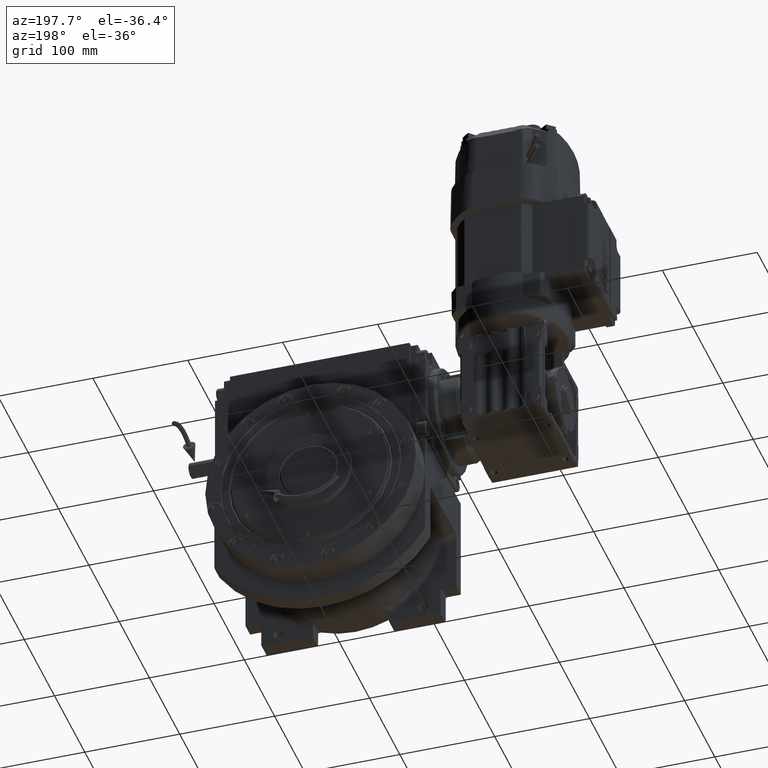
[diagram: clean part render]
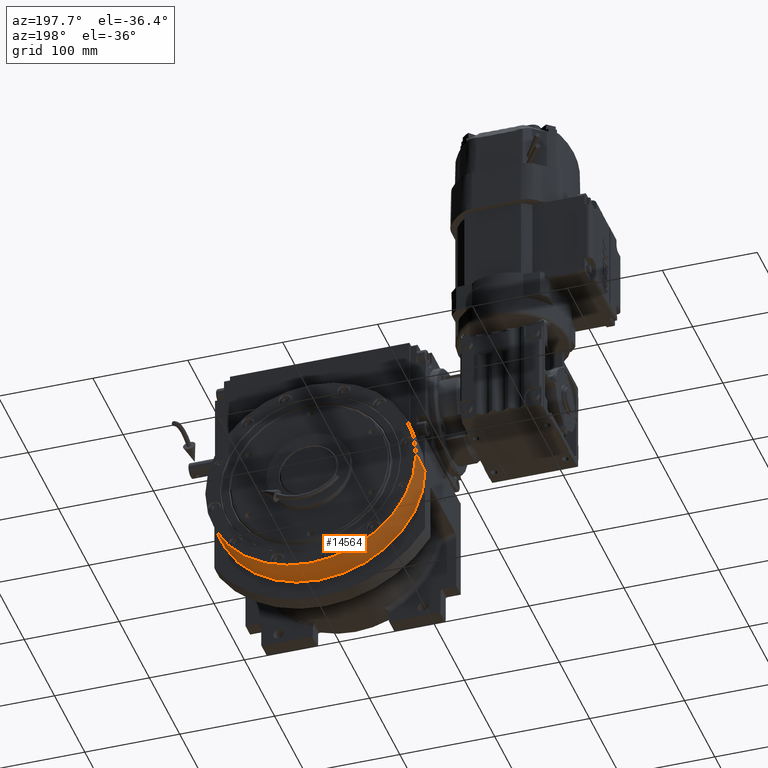
[diagram: same view with one face highlighted and labeled with its STEP entity id]
A machine part, auxiliary view. The second image highlights one B-rep face of the part: STEP entity #14564.
In plain terms, the highlighted cylindrical surface (partial cylindrical patch) has radius 111 mm, axis along (0, -1, 0).
Its self-contained STEP definition (entity closure, byte-faithful):
#58 = DIRECTION ( 'NONE',  ( 0.000000000000000000, 0.000000000000000000, 1.000000000000000000 ) ) ;
#304 = FACE_OUTER_BOUND ( 'NONE', #77215, .T. ) ;
#902 = CIRCLE ( 'NONE', #16998, 111.0000000000000000 ) ;
#2777 = EDGE_CURVE ( 'NONE', #90455, #95475, #38497, .T. ) ;
#10929 = EDGE_CURVE ( 'NONE', #92401, #95475, #902, .T. ) ;
#14564 = ADVANCED_FACE ( 'NONE', ( #304 ), #31107, .T. ) ;
#15260 = DIRECTION ( 'NONE',  ( 0.000000000000000000, 0.000000000000000000, 1.000000000000000000 ) ) ;
#15363 = EDGE_CURVE ( 'NONE', #50248, #92401, #61686, .T. ) ;
#16688 = DIRECTION ( 'NONE',  ( 1.000000000000000000, 0.000000000000000000, 0.000000000000000000 ) ) ;
#16998 = AXIS2_PLACEMENT_3D ( 'NONE', #93450, #85392, #16688 ) ;
#29109 = CARTESIAN_POINT ( 'NONE',  ( 0.000000000000000000, 0.000000000000000000, 0.000000000000000000 ) ) ;
#31107 = CYLINDRICAL_SURFACE ( 'NONE', #44412, 111.0000000000000000 ) ;
#33174 = CARTESIAN_POINT ( 'NONE',  ( 111.0000000000000000, 0.000000000000000000, 30.00000000000000000 ) ) ;
#35781 = EDGE_CURVE ( 'NONE', #50248, #90455, #59905, .T. ) ;
#38497 = LINE ( 'NONE', #90563, #88328 ) ;
#44412 = AXIS2_PLACEMENT_3D ( 'NONE', #29109, #44750, #99310 ) ;
#44750 = DIRECTION ( 'NONE',  ( 0.000000000000000000, 0.000000000000000000, -1.000000000000000000 ) ) ;
#50248 = VERTEX_POINT ( 'NONE', #77823 ) ;
#53128 = ORIENTED_EDGE ( 'NONE', *, *, #15363, .F. ) ;
#57625 = CARTESIAN_POINT ( 'NONE',  ( -111.0000000000000000, 4.531193156845210737E-15, 0.000000000000000000 ) ) ;
#59320 = ORIENTED_EDGE ( 'NONE', *, *, #10929, .F. ) ;
#59566 = ORIENTED_EDGE ( 'NONE', *, *, #2777, .T. ) ;
#59905 = CIRCLE ( 'NONE', #92181, 111.0000000000000000 ) ;
#60440 = VECTOR ( 'NONE', #58, 1000.000000000000000 ) ;
#61686 = LINE ( 'NONE', #78841, #60440 ) ;
#63477 = DIRECTION ( 'NONE',  ( 1.000000000000000000, 0.000000000000000000, 0.000000000000000000 ) ) ;
#64171 = ORIENTED_EDGE ( 'NONE', *, *, #35781, .T. ) ;
#77215 = EDGE_LOOP ( 'NONE', ( #59566, #59320, #53128, #64171 ) ) ;
#77823 = CARTESIAN_POINT ( 'NONE',  ( 111.0000000000000000, 0.000000000000000000, 0.000000000000000000 ) ) ;
#78841 = CARTESIAN_POINT ( 'NONE',  ( 111.0000000000000000, 0.000000000000000000, 0.000000000000000000 ) ) ;
#85392 = DIRECTION ( 'NONE',  ( 0.000000000000000000, 0.000000000000000000, 1.000000000000000000 ) ) ;
#86518 = CARTESIAN_POINT ( 'NONE',  ( -111.0000000000000000, 4.531193156845210737E-15, 30.00000000000000000 ) ) ;
#88328 = VECTOR ( 'NONE', #15260, 1000.000000000000000 ) ;
#90455 = VERTEX_POINT ( 'NONE', #57625 ) ;
#90563 = CARTESIAN_POINT ( 'NONE',  ( -111.0000000000000000, 1.359357947053561722E-14, 0.000000000000000000 ) ) ;
#92181 = AXIS2_PLACEMENT_3D ( 'NONE', #94262, #95271, #63477 ) ;
#92401 = VERTEX_POINT ( 'NONE', #33174 ) ;
#93450 = CARTESIAN_POINT ( 'NONE',  ( 0.000000000000000000, 0.000000000000000000, 30.00000000000000000 ) ) ;
#94262 = CARTESIAN_POINT ( 'NONE',  ( 0.000000000000000000, 0.000000000000000000, 0.000000000000000000 ) ) ;
#95271 = DIRECTION ( 'NONE',  ( 0.000000000000000000, 0.000000000000000000, 1.000000000000000000 ) ) ;
#95475 = VERTEX_POINT ( 'NONE', #86518 ) ;
#99310 = DIRECTION ( 'NONE',  ( 1.000000000000000000, 0.000000000000000000, 0.000000000000000000 ) ) ;